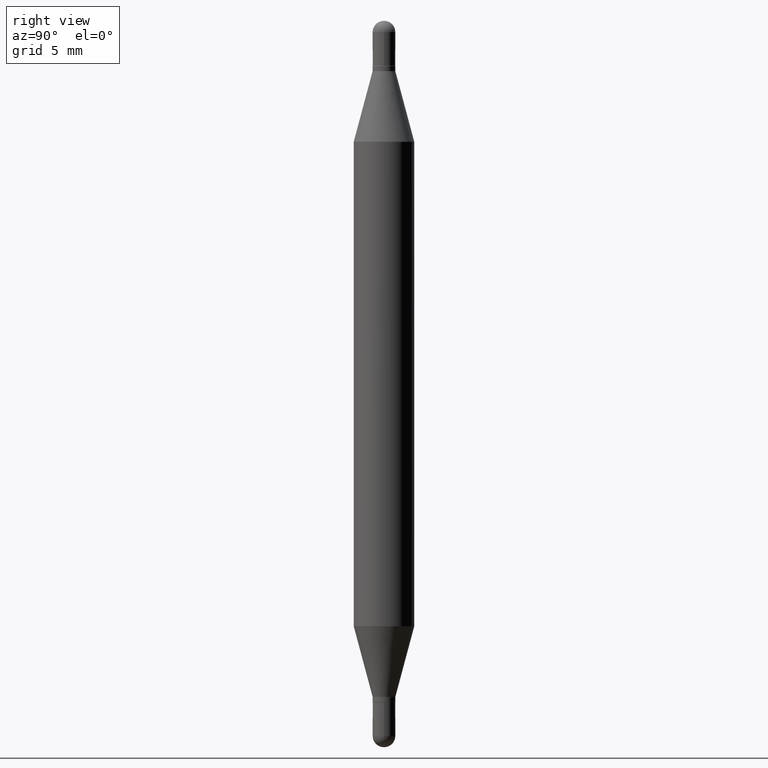
[diagram: clean part render]
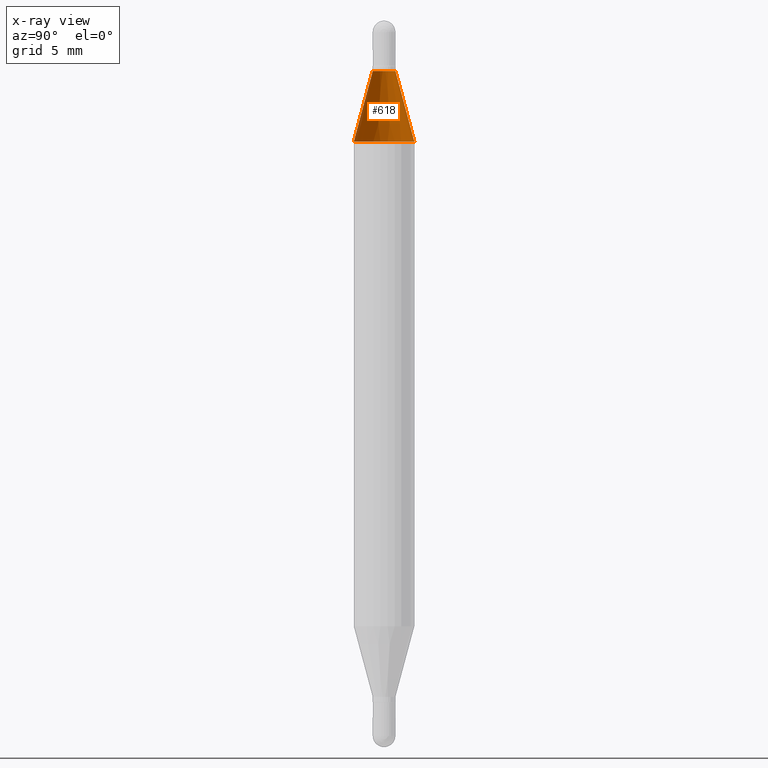
[diagram: x-ray — body ghosted, one internal face saturated and labeled with its STEP entity id]
A machine part, right view, then the same camera in x-ray: the body is ghosted and one INTERNAL B-rep face — a face not visible from any outside direction — is saturated and labeled: STEP entity #618.
In plain terms, the highlighted conical surface has half-angle 15 deg.
Its self-contained STEP definition (entity closure, byte-faithful):
#28 = AXIS2_PLACEMENT_3D ( 'NONE', #148, #830, #410 ) ;
#64 = VERTEX_POINT ( 'NONE', #437 ) ;
#72 = DIRECTION ( 'NONE',  ( 1.775627540710967075E-15, 0.2588190451025184635, -0.9659258262890689783 ) ) ;
#111 = AXIS2_PLACEMENT_3D ( 'NONE', #867, #177, #433 ) ;
#148 = CARTESIAN_POINT ( 'NONE',  ( 3.413861780679579577E-29, -3.707982065709483135E-16, -0.1040000000000000369 ) ) ;
#163 = LINE ( 'NONE', #331, #1083 ) ;
#168 = ORIENTED_EDGE ( 'NONE', *, *, #510, .T. ) ;
#177 = DIRECTION ( 'NONE',  ( 2.445459728280500552E-29, 3.479601466901707095E-15, 1.000000000000000000 ) ) ;
#184 = VERTEX_POINT ( 'NONE', #263 ) ;
#214 = EDGE_LOOP ( 'NONE', ( #1038, #168, #227, #323 ) ) ;
#227 = ORIENTED_EDGE ( 'NONE', *, *, #993, .T. ) ;
#263 = CARTESIAN_POINT ( 'NONE',  ( 4.287811248607512417E-16, 0.06249999999999911876, -0.2497365840355655620 ) ) ;
#323 = ORIENTED_EDGE ( 'NONE', *, *, #958, .F. ) ;
#331 = CARTESIAN_POINT ( 'NONE',  ( 1.608786780477741210E-16, 0.02344999999999928045, -0.1040000000000001201 ) ) ;
#361 = AXIS2_PLACEMENT_3D ( 'NONE', #903, #500, #996 ) ;
#374 = VERTEX_POINT ( 'NONE', #576 ) ;
#410 = DIRECTION ( 'NONE',  ( -6.982962677686265133E-15, -1.000000000000000000, 3.640522379616609463E-15 ) ) ;
#433 = DIRECTION ( 'NONE',  ( -6.982962677686265922E-15, -1.000000000000000000, 3.278217592397115862E-15 ) ) ;
#437 = CARTESIAN_POINT ( 'NONE',  ( -4.364351673553610517E-16, -0.06250000000000087430, -0.2497365840355651456 ) ) ;
#452 = CARTESIAN_POINT ( 'NONE',  ( -1.637504747917063431E-16, -0.02345000000000002291, -0.1039999999999999536 ) ) ;
#474 = CONICAL_SURFACE ( 'NONE', #28, 0.02344999999999965168, 0.2617993877991505736 ) ;
#500 = DIRECTION ( 'NONE',  ( 2.445459728280500552E-29, 3.479601466901707095E-15, 1.000000000000000000 ) ) ;
#510 = EDGE_CURVE ( 'NONE', #374, #184, #163, .T. ) ;
#576 = CARTESIAN_POINT ( 'NONE',  ( 1.608786780477752056E-16, 0.02344999999999928045, -0.1040000000000001201 ) ) ;
#592 = DIRECTION ( 'NONE',  ( -1.807323732225332111E-15, -0.2588190451025252359, -0.9659258262890670910 ) ) ;
#618 = ADVANCED_FACE ( 'NONE', ( #916 ), #474, .T. ) ;
#639 = CIRCLE ( 'NONE', #361, 0.02344999999999965168 ) ;
#659 = CIRCLE ( 'NONE', #111, 0.06250000000000000000 ) ;
#703 = VERTEX_POINT ( 'NONE', #452 ) ;
#776 = EDGE_CURVE ( 'NONE', #374, #703, #639, .T. ) ;
#789 = VECTOR ( 'NONE', #592, 39.37007874015748143 ) ;
#830 = DIRECTION ( 'NONE',  ( -2.445459728280500552E-29, -3.479601466901707095E-15, -1.000000000000000000 ) ) ;
#867 = CARTESIAN_POINT ( 'NONE',  ( 3.057468833483437762E-29, -8.779034381623444770E-16, -0.2497365840355653399 ) ) ;
#903 = CARTESIAN_POINT ( 'NONE',  ( 3.413861780679579577E-29, -3.707982065709483135E-16, -0.1040000000000000369 ) ) ;
#916 = FACE_OUTER_BOUND ( 'NONE', #214, .T. ) ;
#958 = EDGE_CURVE ( 'NONE', #703, #64, #1019, .T. ) ;
#993 = EDGE_CURVE ( 'NONE', #184, #64, #659, .T. ) ;
#996 = DIRECTION ( 'NONE',  ( -6.982962677686265133E-15, -1.000000000000000000, 3.640522379616609463E-15 ) ) ;
#1019 = LINE ( 'NONE', #1109, #789 ) ;
#1038 = ORIENTED_EDGE ( 'NONE', *, *, #776, .F. ) ;
#1083 = VECTOR ( 'NONE', #72, 39.37007874015748854 ) ;
#1109 = CARTESIAN_POINT ( 'NONE',  ( -1.637504747917063431E-16, -0.02345000000000002291, -0.1039999999999999536 ) ) ;